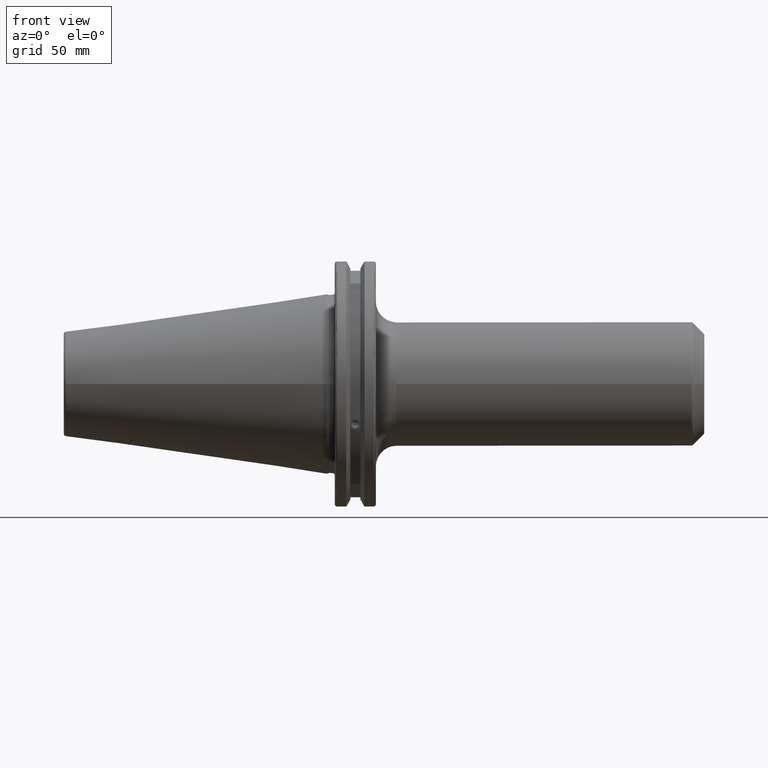
[diagram: clean part render]
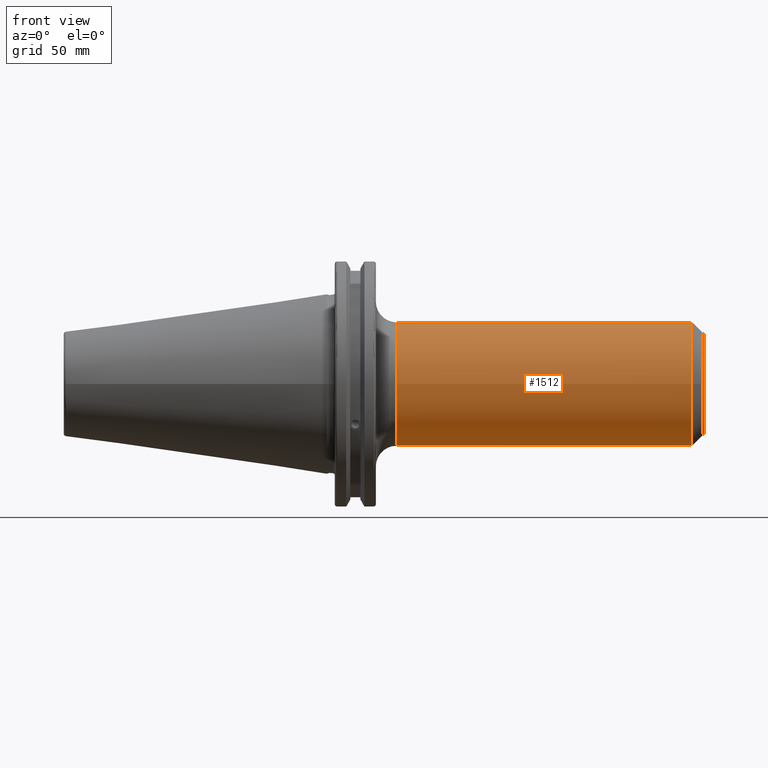
[diagram: same view with one face highlighted and labeled with its STEP entity id]
A machine part, front view. The second image highlights one B-rep face of the part: STEP entity #1512.
In plain terms, the highlighted cylindrical surface (bore or boss wall) has radius 23.876 mm, axis along (1, 0, 0).
Its self-contained STEP definition (entity closure, byte-faithful):
#70=FACE_BOUND('',#225,.T.);
#71=FACE_BOUND('',#226,.T.);
#106=CYLINDRICAL_SURFACE('',#1631,23.876);
#137=FACE_OUTER_BOUND('',#224,.T.);
#224=EDGE_LOOP('',(#1059,#1060,#1061,#1062,#1063,#1064));
#225=EDGE_LOOP('',(#1065,#1066));
#226=EDGE_LOOP('',(#1067,#1068));
#334=CIRCLE('',#1626,23.876);
#335=CIRCLE('',#1627,23.876);
#338=CIRCLE('',#1632,23.876);
#339=CIRCLE('',#1633,23.876);
#411=LINE('',#2393,#503);
#503=VECTOR('',#1821,23.876);
#590=B_SPLINE_CURVE_WITH_KNOTS('',3,(#2212,#2213,#2214,#2215,#2216,#2217,
#2218,#2219,#2220,#2221,#2222,#2223,#2224,#2225,#2226,#2227,#2228,#2229),
 .UNSPECIFIED.,.F.,.F.,(4,2,2,2,2,2,2,2,4),(1.30164426528755,1.63350766950352,
1.96537107371949,2.2843298021473,2.6032885305751,2.92224725900291,3.24120598743072,
3.57306939164669,3.90493279586266),.UNSPECIFIED.);
#591=B_SPLINE_CURVE_WITH_KNOTS('',3,(#2233,#2234,#2235,#2236,#2237,#2238,
#2239,#2240,#2241,#2242,#2243,#2244,#2245,#2246,#2247,#2248,#2249,#2250,
#2251),.UNSPECIFIED.,.F.,.F.,(4,2,2,2,3,2,2,2,4),(3.90493279586266,4.23679620007862,
4.56865960429459,4.8876183327224,5.20657706115021,5.52553578957802,5.84449451800583,
6.1763579222218,6.50822132643776),.UNSPECIFIED.);
#594=B_SPLINE_CURVE_WITH_KNOTS('',3,(#2295,#2296,#2297,#2298,#2299,#2300,
#2301,#2302,#2303,#2304,#2305,#2306,#2307,#2308,#2309,#2310,#2311,#2312),
 .UNSPECIFIED.,.F.,.F.,(4,2,2,2,2,2,2,2,4),(1.30164426528755,1.63350766950352,
1.96537107371949,2.2843298021473,2.60328853057511,2.92224725900292,3.24120598743072,
3.57306939164669,3.90493279586266),.UNSPECIFIED.);
#595=B_SPLINE_CURVE_WITH_KNOTS('',3,(#2316,#2317,#2318,#2319,#2320,#2321,
#2322,#2323,#2324,#2325,#2326,#2327,#2328,#2329,#2330,#2331,#2332,#2333,
#2334),.UNSPECIFIED.,.F.,.F.,(4,2,2,2,3,2,2,2,4),(3.90493279586266,4.23679620007863,
4.56865960429459,4.8876183327224,5.20657706115021,5.52553578957802,5.84449451800583,
6.1763579222218,6.50822132643777),.UNSPECIFIED.);
#636=VERTEX_POINT('',#2210);
#637=VERTEX_POINT('',#2211);
#641=VERTEX_POINT('',#2293);
#642=VERTEX_POINT('',#2294);
#648=VERTEX_POINT('',#2380);
#649=VERTEX_POINT('',#2382);
#652=VERTEX_POINT('',#2392);
#653=VERTEX_POINT('',#2394);
#794=EDGE_CURVE('',#636,#637,#590,.T.);
#797=EDGE_CURVE('',#637,#636,#591,.T.);
#801=EDGE_CURVE('',#641,#642,#594,.T.);
#804=EDGE_CURVE('',#642,#641,#595,.T.);
#811=EDGE_CURVE('',#648,#649,#334,.T.);
#812=EDGE_CURVE('',#649,#648,#335,.T.);
#816=EDGE_CURVE('',#649,#652,#411,.T.);
#817=EDGE_CURVE('',#653,#652,#338,.T.);
#818=EDGE_CURVE('',#652,#653,#339,.T.);
#1059=ORIENTED_EDGE('',*,*,#812,.F.);
#1060=ORIENTED_EDGE('',*,*,#816,.T.);
#1061=ORIENTED_EDGE('',*,*,#817,.F.);
#1062=ORIENTED_EDGE('',*,*,#818,.F.);
#1063=ORIENTED_EDGE('',*,*,#816,.F.);
#1064=ORIENTED_EDGE('',*,*,#811,.F.);
#1065=ORIENTED_EDGE('',*,*,#794,.T.);
#1066=ORIENTED_EDGE('',*,*,#797,.T.);
#1067=ORIENTED_EDGE('',*,*,#801,.T.);
#1068=ORIENTED_EDGE('',*,*,#804,.T.);
#1512=ADVANCED_FACE('',(#137,#70,#71),#106,.T.);
#1626=AXIS2_PLACEMENT_3D('',#2383,#1808,#1809);
#1627=AXIS2_PLACEMENT_3D('',#2384,#1810,#1811);
#1631=AXIS2_PLACEMENT_3D('',#2391,#1819,#1820);
#1632=AXIS2_PLACEMENT_3D('',#2395,#1822,#1823);
#1633=AXIS2_PLACEMENT_3D('',#2396,#1824,#1825);
#1808=DIRECTION('center_axis',(1.,0.,0.));
#1809=DIRECTION('ref_axis',(0.,-1.,1.83697019872103E-16));
#1810=DIRECTION('center_axis',(1.,0.,0.));
#1811=DIRECTION('ref_axis',(0.,-1.,1.83697019872103E-16));
#1819=DIRECTION('center_axis',(1.,0.,0.));
#1820=DIRECTION('ref_axis',(0.,1.,0.));
#1821=DIRECTION('',(-1.,0.,0.));
#1822=DIRECTION('center_axis',(-1.,0.,0.));
#1823=DIRECTION('ref_axis',(0.,-1.,-1.22464679914735E-16));
#1824=DIRECTION('center_axis',(-1.,0.,0.));
#1825=DIRECTION('ref_axis',(0.,-1.,-1.22464679914735E-16));
#2210=CARTESIAN_POINT('',(118.135,23.876,0.));
#2211=CARTESIAN_POINT('',(99.665,23.876,0.));
#2212=CARTESIAN_POINT('Ctrl Pts',(118.135,23.876,-2.08166817117217E-15));
#2213=CARTESIAN_POINT('Ctrl Pts',(118.135,23.876,1.10621134738656));
#2214=CARTESIAN_POINT('Ctrl Pts',(117.84318482617,23.791811177919,2.24928569998616));
#2215=CARTESIAN_POINT('Ctrl Pts',(116.756210443835,23.5122828537087,4.27575773642004));
#2216=CARTESIAN_POINT('Ctrl Pts',(115.963128014008,23.3218102094673,5.16093685941274));
#2217=CARTESIAN_POINT('Ctrl Pts',(114.270447805923,22.9903794553923,6.47673113367354));
#2218=CARTESIAN_POINT('Ctrl Pts',(113.261180981183,22.8248688716155,7.01621592347482));
#2219=CARTESIAN_POINT('Ctrl Pts',(111.107736905184,22.5950721774041,7.7242881080643));
#2220=CARTESIAN_POINT('Ctrl Pts',(109.963195761426,22.5337168771105,7.89271687711051));
#2221=CARTESIAN_POINT('Ctrl Pts',(107.836804238574,22.5337168771105,7.89271687711051));
#2222=CARTESIAN_POINT('Ctrl Pts',(106.692263094816,22.5950721774041,7.72428810806431));
#2223=CARTESIAN_POINT('Ctrl Pts',(104.538819018817,22.8248688716155,7.01621592347484));
#2224=CARTESIAN_POINT('Ctrl Pts',(103.529552194077,22.9903794553923,6.47673113367354));
#2225=CARTESIAN_POINT('Ctrl Pts',(101.836871985992,23.3218102094673,5.16093685941274));
#2226=CARTESIAN_POINT('Ctrl Pts',(101.043789556165,23.5122828537087,4.27575773642005));
#2227=CARTESIAN_POINT('Ctrl Pts',(99.9568151738305,23.791811177919,2.24928569998615));
#2228=CARTESIAN_POINT('Ctrl Pts',(99.665,23.876,1.10621134738656));
#2229=CARTESIAN_POINT('Ctrl Pts',(99.665,23.876,3.19189119579733E-15));
#2233=CARTESIAN_POINT('Ctrl Pts',(99.665,23.876,3.46944695195361E-15));
#2234=CARTESIAN_POINT('Ctrl Pts',(99.665,23.876,-1.10621134738656));
#2235=CARTESIAN_POINT('Ctrl Pts',(99.9568151738305,23.791811177919,-2.24928569998615));
#2236=CARTESIAN_POINT('Ctrl Pts',(101.043789556165,23.5122828537087,-4.27575773642004));
#2237=CARTESIAN_POINT('Ctrl Pts',(101.836871985992,23.3218102094673,-5.16093685941274));
#2238=CARTESIAN_POINT('Ctrl Pts',(103.529552194077,22.9903794553923,-6.47673113367354));
#2239=CARTESIAN_POINT('Ctrl Pts',(104.538819018817,22.8248688716155,-7.01621592347484));
#2240=CARTESIAN_POINT('Ctrl Pts',(106.692263094816,22.5950721774041,-7.72428810806431));
#2241=CARTESIAN_POINT('Ctrl Pts',(107.836804238574,22.5337168771105,-7.89271687711051));
#2242=CARTESIAN_POINT('Ctrl Pts',(108.9,22.5337168771105,-7.89271687711051));
#2243=CARTESIAN_POINT('Ctrl Pts',(109.963195761426,22.5337168771105,-7.89271687711051));
#2244=CARTESIAN_POINT('Ctrl Pts',(111.107736905184,22.5950721774041,-7.72428810806431));
#2245=CARTESIAN_POINT('Ctrl Pts',(113.261180981183,22.8248688716155,-7.01621592347484));
#2246=CARTESIAN_POINT('Ctrl Pts',(114.270447805923,22.9903794553923,-6.47673113367354));
#2247=CARTESIAN_POINT('Ctrl Pts',(115.963128014008,23.3218102094673,-5.16093685941274));
#2248=CARTESIAN_POINT('Ctrl Pts',(116.756210443835,23.5122828537087,-4.27575773642004));
#2249=CARTESIAN_POINT('Ctrl Pts',(117.84318482617,23.791811177919,-2.24928569998616));
#2250=CARTESIAN_POINT('Ctrl Pts',(118.135,23.876,-1.10621134738656));
#2251=CARTESIAN_POINT('Ctrl Pts',(118.135,23.876,-8.32667268468867E-16));
#2293=CARTESIAN_POINT('',(138.735,23.876,0.));
#2294=CARTESIAN_POINT('',(120.265,23.876,0.));
#2295=CARTESIAN_POINT('Ctrl Pts',(138.735,23.876,-2.08166817117217E-15));
#2296=CARTESIAN_POINT('Ctrl Pts',(138.735,23.876,1.10621134738656));
#2297=CARTESIAN_POINT('Ctrl Pts',(138.44318482617,23.791811177919,2.24928569998615));
#2298=CARTESIAN_POINT('Ctrl Pts',(137.356210443835,23.5122828537087,4.27575773642004));
#2299=CARTESIAN_POINT('Ctrl Pts',(136.563128014008,23.3218102094673,5.16093685941274));
#2300=CARTESIAN_POINT('Ctrl Pts',(134.870447805924,22.9903794553923,6.47673113367354));
#2301=CARTESIAN_POINT('Ctrl Pts',(133.861180981183,22.8248688716155,7.01621592347483));
#2302=CARTESIAN_POINT('Ctrl Pts',(131.707736905184,22.5950721774041,7.72428810806431));
#2303=CARTESIAN_POINT('Ctrl Pts',(130.563195761426,22.5337168771105,7.89271687711051));
#2304=CARTESIAN_POINT('Ctrl Pts',(128.436804238574,22.5337168771105,7.89271687711051));
#2305=CARTESIAN_POINT('Ctrl Pts',(127.292263094816,22.5950721774041,7.72428810806431));
#2306=CARTESIAN_POINT('Ctrl Pts',(125.138819018817,22.8248688716155,7.01621592347483));
#2307=CARTESIAN_POINT('Ctrl Pts',(124.129552194077,22.9903794553923,6.47673113367354));
#2308=CARTESIAN_POINT('Ctrl Pts',(122.436871985992,23.3218102094673,5.16093685941274));
#2309=CARTESIAN_POINT('Ctrl Pts',(121.643789556165,23.5122828537087,4.27575773642005));
#2310=CARTESIAN_POINT('Ctrl Pts',(120.55681517383,23.791811177919,2.24928569998616));
#2311=CARTESIAN_POINT('Ctrl Pts',(120.265,23.876,1.10621134738656));
#2312=CARTESIAN_POINT('Ctrl Pts',(120.265,23.876,2.77555756156289E-15));
#2316=CARTESIAN_POINT('Ctrl Pts',(120.265,23.876,1.66533453693773E-15));
#2317=CARTESIAN_POINT('Ctrl Pts',(120.265,23.876,-1.10621134738656));
#2318=CARTESIAN_POINT('Ctrl Pts',(120.556815173831,23.791811177919,-2.24928569998616));
#2319=CARTESIAN_POINT('Ctrl Pts',(121.643789556165,23.5122828537087,-4.27575773642004));
#2320=CARTESIAN_POINT('Ctrl Pts',(122.436871985992,23.3218102094673,-5.16093685941274));
#2321=CARTESIAN_POINT('Ctrl Pts',(124.129552194077,22.9903794553923,-6.47673113367354));
#2322=CARTESIAN_POINT('Ctrl Pts',(125.138819018817,22.8248688716155,-7.01621592347483));
#2323=CARTESIAN_POINT('Ctrl Pts',(127.292263094816,22.5950721774041,-7.72428810806431));
#2324=CARTESIAN_POINT('Ctrl Pts',(128.436804238574,22.5337168771105,-7.89271687711051));
#2325=CARTESIAN_POINT('Ctrl Pts',(129.5,22.5337168771105,-7.89271687711051));
#2326=CARTESIAN_POINT('Ctrl Pts',(130.563195761426,22.5337168771105,-7.89271687711051));
#2327=CARTESIAN_POINT('Ctrl Pts',(131.707736905184,22.5950721774041,-7.72428810806431));
#2328=CARTESIAN_POINT('Ctrl Pts',(133.861180981183,22.8248688716155,-7.01621592347483));
#2329=CARTESIAN_POINT('Ctrl Pts',(134.870447805924,22.9903794553923,-6.47673113367354));
#2330=CARTESIAN_POINT('Ctrl Pts',(136.563128014008,23.3218102094673,-5.16093685941274));
#2331=CARTESIAN_POINT('Ctrl Pts',(137.356210443835,23.5122828537087,-4.27575773642004));
#2332=CARTESIAN_POINT('Ctrl Pts',(138.44318482617,23.791811177919,-2.24928569998615));
#2333=CARTESIAN_POINT('Ctrl Pts',(138.735,23.876,-1.10621134738656));
#2334=CARTESIAN_POINT('Ctrl Pts',(138.735,23.876,-9.71445146547012E-16));
#2380=CARTESIAN_POINT('',(140.959786437627,-2.92396669764422E-15,23.876));
#2382=CARTESIAN_POINT('',(140.959786437627,-23.876,-2.92396669764422E-15));
#2383=CARTESIAN_POINT('Origin',(140.959786437627,0.,0.));
#2384=CARTESIAN_POINT('Origin',(140.959786437627,0.,0.));
#2391=CARTESIAN_POINT('Origin',(80.212,0.,0.));
#2392=CARTESIAN_POINT('',(27.05,-23.876,-2.92396669764422E-15));
#2393=CARTESIAN_POINT('',(80.212,-23.876,-2.92396669764422E-15));
#2394=CARTESIAN_POINT('',(27.05,-2.92396669764422E-15,-23.876));
#2395=CARTESIAN_POINT('Origin',(27.05,0.,0.));
#2396=CARTESIAN_POINT('Origin',(27.05,0.,0.));